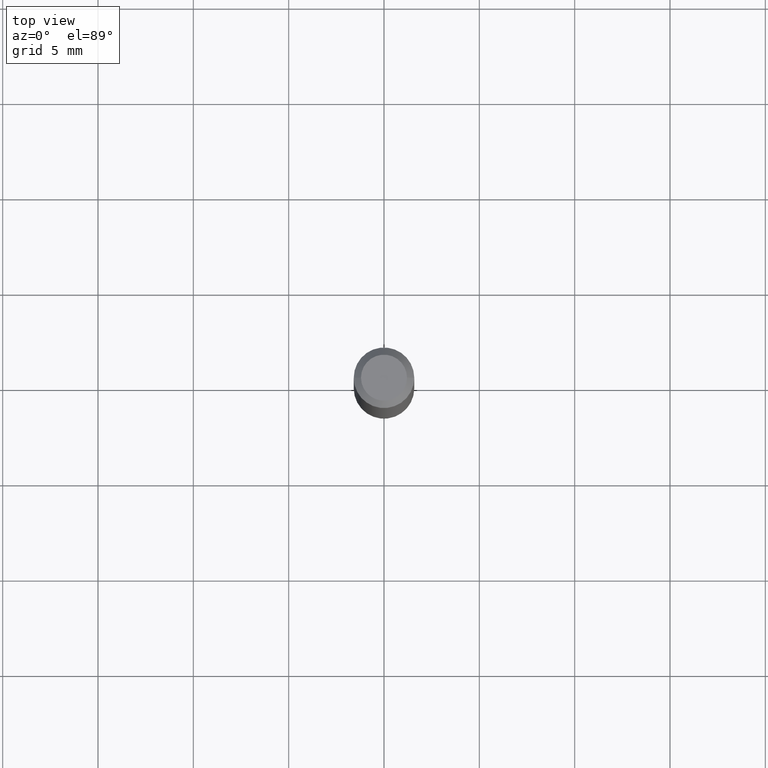
[diagram: clean part render]
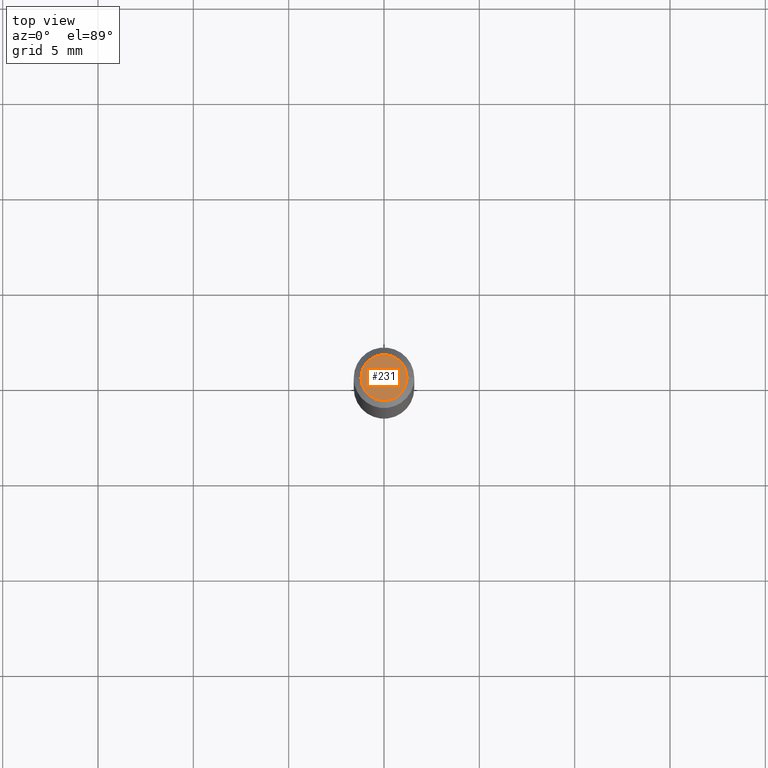
[diagram: same view with one face highlighted and labeled with its STEP entity id]
A machine part, top view. The second image highlights one B-rep face of the part: STEP entity #231.
In plain terms, the highlighted planar face has unit normal (0, -0, -1).
Its self-contained STEP definition (entity closure, byte-faithful):
#26 = ORIENTED_EDGE ( 'NONE', *, *, #300, .T. ) ;
#59 = VERTEX_POINT ( 'NONE', #309 ) ;
#60 = FACE_OUTER_BOUND ( 'NONE', #427, .T. ) ;
#105 = CARTESIAN_POINT ( 'NONE',  ( 3.316907271900976096E-16, 0.04749999999999999362, -2.653275547260257586E-16 ) ) ;
#106 = DIRECTION ( 'NONE',  ( 2.438088387897960049E-29, -3.491481338843145188E-15, -1.000000000000000000 ) ) ;
#113 = CIRCLE ( 'NONE', #386, 0.04749999999999999362 ) ;
#173 = AXIS2_PLACEMENT_3D ( 'NONE', #257, #215, #255 ) ;
#180 = EDGE_CURVE ( 'NONE', #59, #310, #113, .T. ) ;
#198 = PLANE ( 'NONE',  #381 ) ;
#215 = DIRECTION ( 'NONE',  ( -2.445468806185136597E-29, 3.491481338843145583E-15, 1.000000000000000000 ) ) ;
#231 = ADVANCED_FACE ( 'NONE', ( #60 ), #198, .F. ) ;
#233 = ORIENTED_EDGE ( 'NONE', *, *, #180, .T. ) ;
#236 = CARTESIAN_POINT ( 'NONE',  ( 4.865611903635008365E-45, -6.946804277620623666E-31, -1.989643822619527736E-16 ) ) ;
#255 = DIRECTION ( 'NONE',  ( 1.000000000000000000, -6.982962677686267499E-15, 4.852736867747366768E-29 ) ) ;
#257 = CARTESIAN_POINT ( 'NONE',  ( 4.865611903635008365E-45, -6.946804277620623666E-31, -1.989643822619527736E-16 ) ) ;
#293 = CARTESIAN_POINT ( 'NONE',  ( -0.04749999999999999362, 3.578768372314206562E-16, -1.989643822619551895E-16 ) ) ;
#295 = CIRCLE ( 'NONE', #173, 0.04749999999999999362 ) ;
#300 = EDGE_CURVE ( 'NONE', #310, #59, #295, .T. ) ;
#309 = CARTESIAN_POINT ( 'NONE',  ( 0.04749999999999999362, -4.035134999187581581E-16, -1.989643822619502098E-16 ) ) ;
#310 = VERTEX_POINT ( 'NONE', #293 ) ;
#346 = DIRECTION ( 'NONE',  ( -2.445468806185136597E-29, 3.491481338843145583E-15, 1.000000000000000000 ) ) ;
#381 = AXIS2_PLACEMENT_3D ( 'NONE', #105, #106, #447 ) ;
#386 = AXIS2_PLACEMENT_3D ( 'NONE', #236, #346, #391 ) ;
#391 = DIRECTION ( 'NONE',  ( 1.000000000000000000, -6.982962677686267499E-15, 4.852736867747366768E-29 ) ) ;
#427 = EDGE_LOOP ( 'NONE', ( #26, #233 ) ) ;
#447 = DIRECTION ( 'NONE',  ( -1.000000000000000000, 6.982962677686265922E-15, -4.876176775795935793E-29 ) ) ;